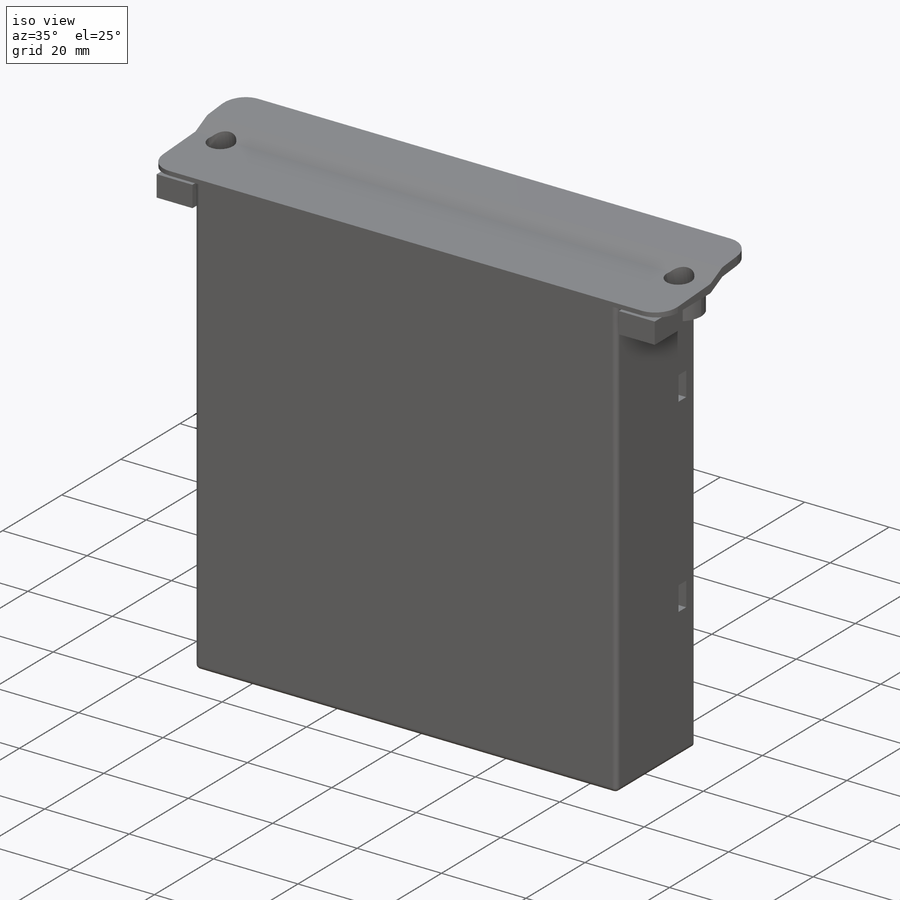
[diagram: iso view]
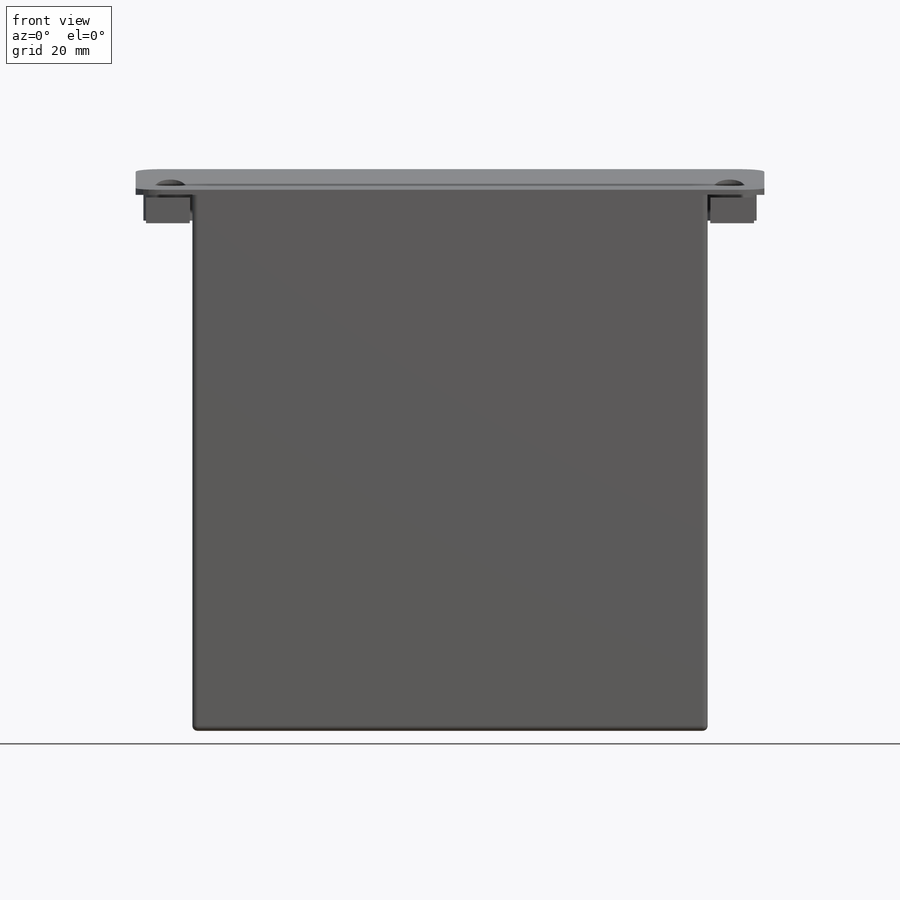
[diagram: front view]
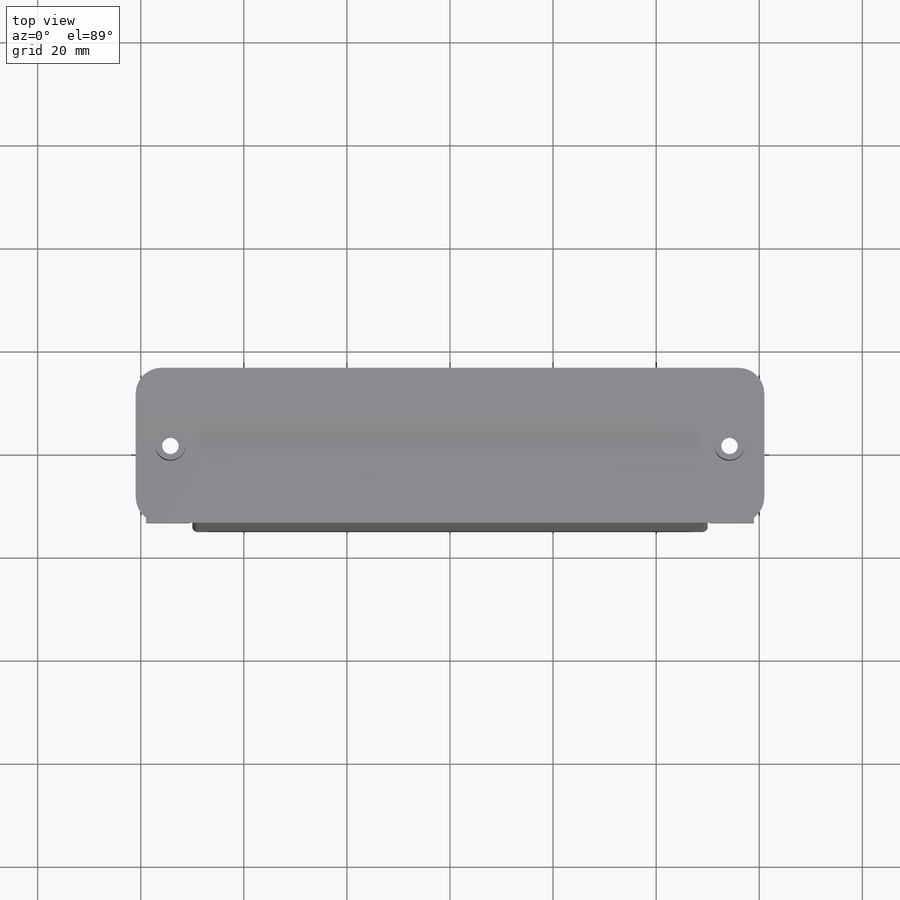
[diagram: top view]
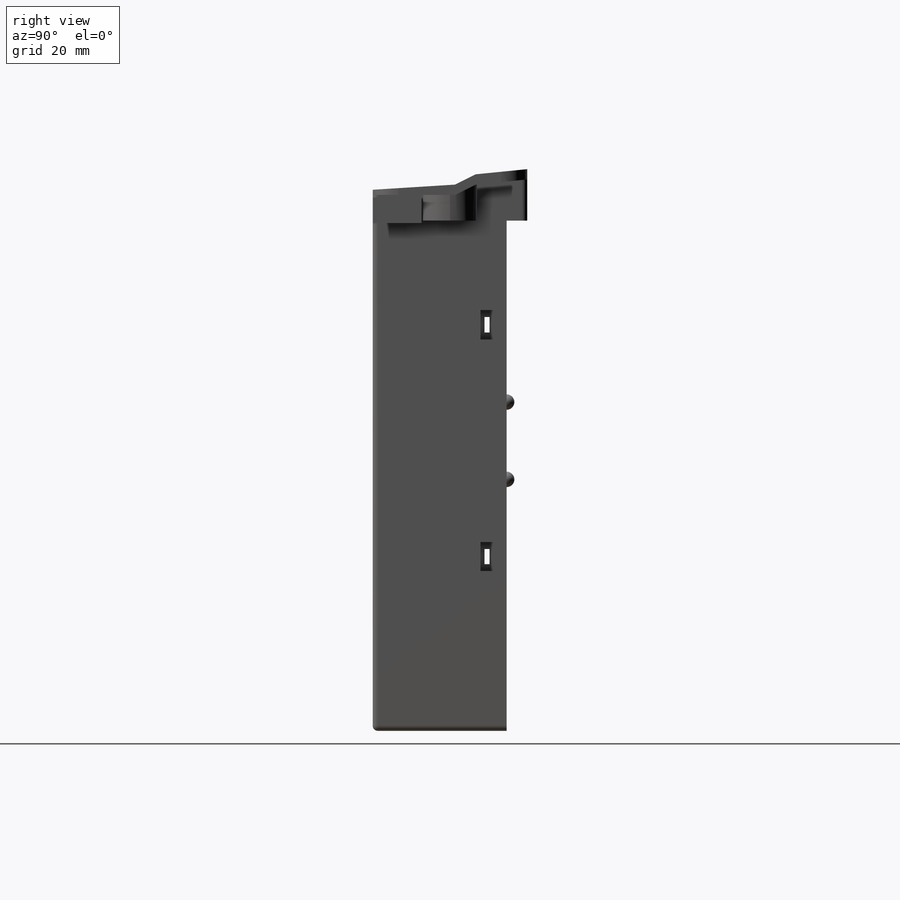
[diagram: right view]
SOLIDWORKS PART (.sldprt)
format: sldprt  version: not decoded by parser v0  size: 1,167,872 bytes
history: native  units: mm
features: sketch x17, extrude x8, cut_extrude x8, fillet x2, pattern_linear x2, mirror x2, material x1, revolve x1 (+13 scaffold rows collapsed)
feature tree (54):
  scaffold x13  (default folders/planes/origin — collapsed)
  material  "Material <not specified>"
  sketch  "Sketch1"  dims[D1=100.0mm D2=30.0mm]
  extrude  "Boss-Extrude1"  Depth=99mm
  sketch  "Sketch3"  dims[D1=10.0mm D2=6.0mm D3=10.0mm D4=1.0mm D5=4.0mm D6=2.0mm D7=1.0mm D8=2.0mm D9=2.0mm D10=2.0mm D11=4.0mm]
  extrude  "Boss-Extrude3"  Depth=61mm
  sketch  "Sketch2"  dims[c1.D1=10.5mm c1.D3=10.5mm c1.D4=10.5mm c1.D5=2.7mm c1.D6=2.7mm c1.D2=1.0mm c2.D3=1.0mm]
  extrude  "Boss-Extrude2"  [1 undecoded]
  sketch  "Sketch9"  dims[c1.D1=10.5mm c1.D3=10.5mm c1.D4=10.5mm c1.D5=3.5mm c1.D6=3.5mm c1.D2=1.0mm c2.D3=1.0mm]
  extrude  "Boss-Extrude5"  [1 undecoded]
  sketch  "Sketch5"  dims[D1=3.7mm D2=3.2mm]
  cut_extrude  "Cut-Extrude1"  Depth=10mm
  sketch  "Sketch4"  dims[D1=12.0mm]
  extrude  "Boss-Extrude4"  Depth=2mm
  sketch  "Sketch6"  dims[D1=6.0mm D2=6.0mm]
  cut_extrude  "Cut-Extrude2"  Depth=4mm
  fillet  "Fillet5"  Radius=1mm
  fillet  "Fillet6"  Radius=5mm
  sketch  "Sketch7"  dims[D1=27.0mm D2=94.0mm D3=4.0mm D4=4.0mm]
  cut_extrude  "Cut-Extrude3"  Depth=99mm
  sketch  "Sketch10"
  cut_extrude  "Cut-Extrude4"  Depth=1mm
  sketch  "Sketch11"  dims[D1=16.0mm]
  extrude  "Boss-Extrude6"  Depth=18.5mm
  sketch  "Sketch12"  dims[D1=6.5mm D2=6.5mm]
  extrude  "Boss-Extrude7"  Depth=23mm
  sketch  "Sketch13"  dims[c1.D1=30.0mm c1.D2=2.6mm c1.D3=5.7mm c2.D1=2.5mm c2.D4=20.2mm]
  cut_extrude  "Cut-Extrude5"  Depth=7mm
  sketch  "Sketch14"  dims[c1.D3=3.2mm c1.D1=3.5mm c1.D2=~6.321451mm c2.D2=90.0deg c3.D2=20.2mm]
  cut_extrude  "Cut-Extrude6"  Depth=2.2mm
  sketch  "Sketch15"  dims[D3=3.2mm D1=2.85mm D2=3.5mm]
  cut_extrude  "Cut-Extrude7"  Depth=5mm
  sketch  "Sketch16"  dims[D1=1.3mm D2=2.85mm D3=3.0mm D4=1.0mm]
  cut_extrude  "Cut-Extrude8"  [1 undecoded]
  pattern_linear  "LPattern2"  Count1=2 Count2=1 Spacing1=45mm Spacing2=10mm
  mirror  "Mirror5"
  sketch  "Sketch17"  dims[c1.D1=1.5mm c1.D2=35.2mm c1.D3=~35.377979mm c2.D3=90.0deg c3.D3=3.0mm]
  revolve  "Revolve1"  Angle=180deg
  pattern_linear  "LPattern3"  Count1=2 Count2=1 Spacing1=15mm Spacing2=10mm
  mirror  "Mirror6"
  sketch  "Sketch18"  dims[c1.D1=0.5mm c1.D2=0.5mm c1.D3=~3.263751mm c1.D4=0.5mm c1.D5=~1.236249mm c2.D3=0.5mm c2.D5=0.5mm c2.D6=0.5mm c2.D7=0.5mm c2.D8=0.5mm]
  extrude  "Boss-Extrude8"  Depth=9.5mm
decode coverage: 34 of 40 modeling features carry decoded parameters
note: ~ marks probable driven/reference dimensions
note: 3 parameter values undecoded
summary: no parameter record found for 3 features
note: suppression state not decoded; provenance and decode notes live in map.json
